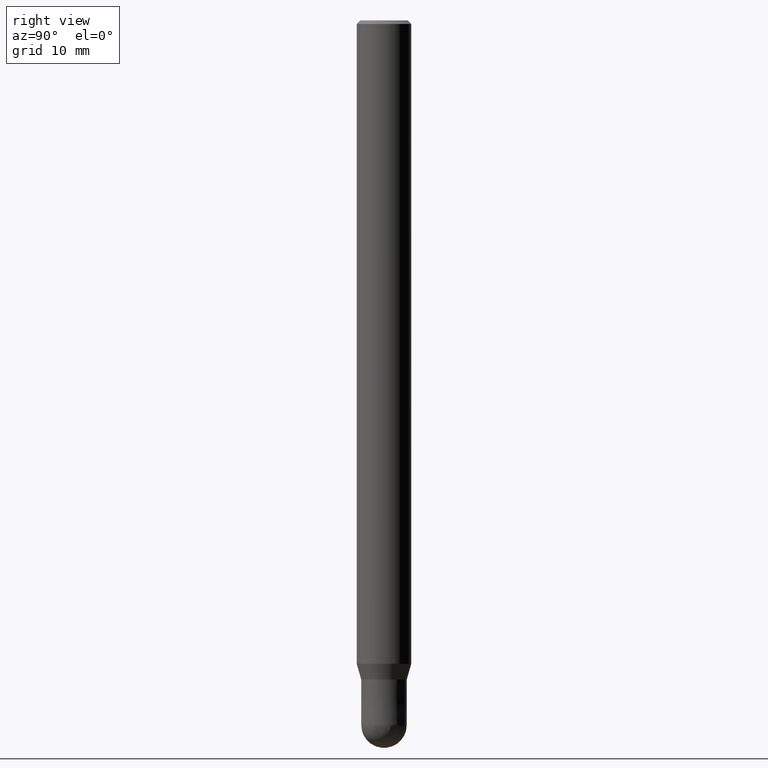
[diagram: clean part render]
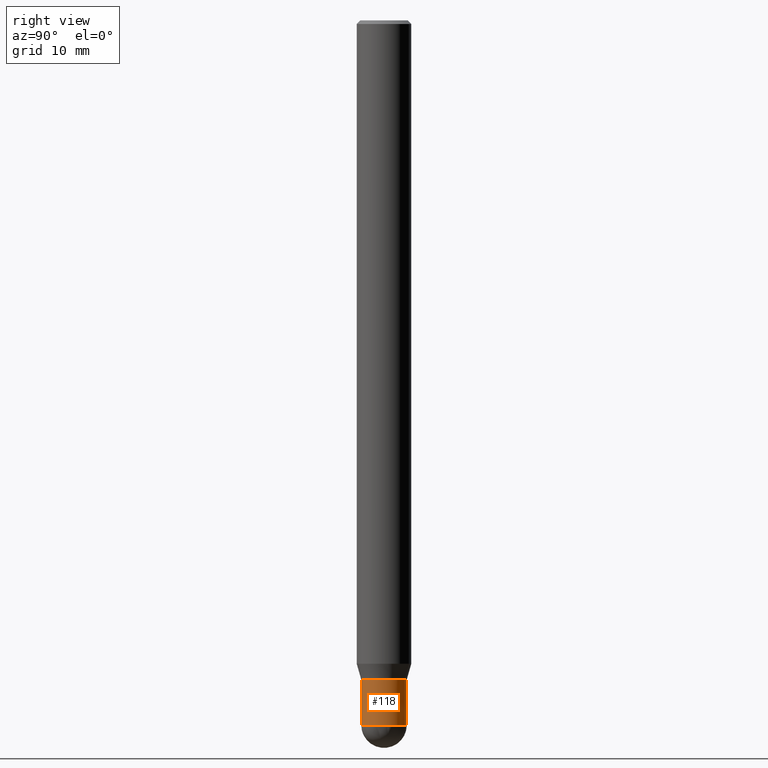
[diagram: same view with one face highlighted and labeled with its STEP entity id]
A machine part, right view. The second image highlights one B-rep face of the part: STEP entity #118.
In plain terms, the highlighted conical surface has half-angle 0.001 deg.
Its self-contained STEP definition (entity closure, byte-faithful):
#92=VERTEX_POINT('',#218);
#98=EDGE_CURVE('',#154,#92,#225,.T.);
#102=VERTEX_POINT('',#230);
#118=ADVANCED_FACE('',(#248),#249,.T.);
#132=EDGE_CURVE('',#102,#180,#265,.T.);
#154=VERTEX_POINT('',#290);
#164=EDGE_CURVE('',#92,#180,#302,.T.);
#180=VERTEX_POINT('',#319);
#184=EDGE_CURVE('',#102,#154,#324,.T.);
#218=CARTESIAN_POINT('',(3.06151588455594E-016,-2.5,-77.5));
#225=CIRCLE('',#361,2.5);
#230=CARTESIAN_POINT('',(0.0,2.4999,-72.5));
#248=FACE_OUTER_BOUND('',#390,.T.);
#249=CONICAL_SURFACE('',#391,2.49995,1.99999999974644E-005);
#265=CIRCLE('',#410,2.4999);
#290=CARTESIAN_POINT('',(0.0,2.5,-77.5));
#302=LINE('',#456,#457);
#319=CARTESIAN_POINT('',(3.06139342392056E-016,-2.4999,-72.5));
#324=LINE('',#483,#484);
#361=AXIS2_PLACEMENT_3D('',#518,#519,#520);
#390=EDGE_LOOP('',(#548,#549,#550,#551));
#391=AXIS2_PLACEMENT_3D('',#552,#553,#554);
#410=AXIS2_PLACEMENT_3D('',#577,#578,#579);
#456=CARTESIAN_POINT('',(3.06145465423825E-016,-2.49995,-75.0));
#457=VECTOR('',#621,1.0);
#483=CARTESIAN_POINT('',(-3.06145465423825E-016,2.49995,-75.0));
#484=VECTOR('',#646,1.0);
#518=CARTESIAN_POINT('',(0.0,0.0,-77.5));
#519=DIRECTION('',(0.0,0.0,-1.0));
#520=DIRECTION('',(0.0,1.0,0.0));
#548=ORIENTED_EDGE('',*,*,#184,.F.);
#549=ORIENTED_EDGE('',*,*,#132,.T.);
#550=ORIENTED_EDGE('',*,*,#164,.F.);
#551=ORIENTED_EDGE('',*,*,#98,.F.);
#552=CARTESIAN_POINT('',(0.0,0.0,-75.0));
#553=DIRECTION('',(0.0,-0.0,-1.0));
#554=DIRECTION('',(0.0,1.0,0.0));
#577=CARTESIAN_POINT('',(0.0,0.0,-72.5));
#578=DIRECTION('',(0.0,0.0,-1.0));
#579=DIRECTION('',(0.0,1.0,0.0));
#621=DIRECTION('',(-2.44921270717096E-021,1.9999999996131E-005,0.9999999998));
#646=DIRECTION('',(-2.44921270717096E-021,1.9999999996131E-005,-0.9999999998));